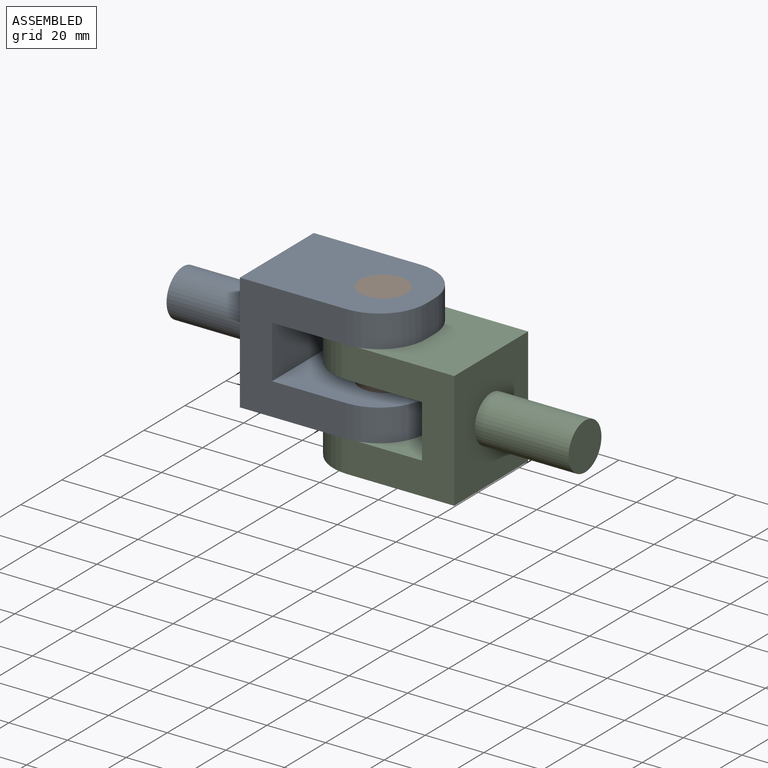
[diagram: assembled view]
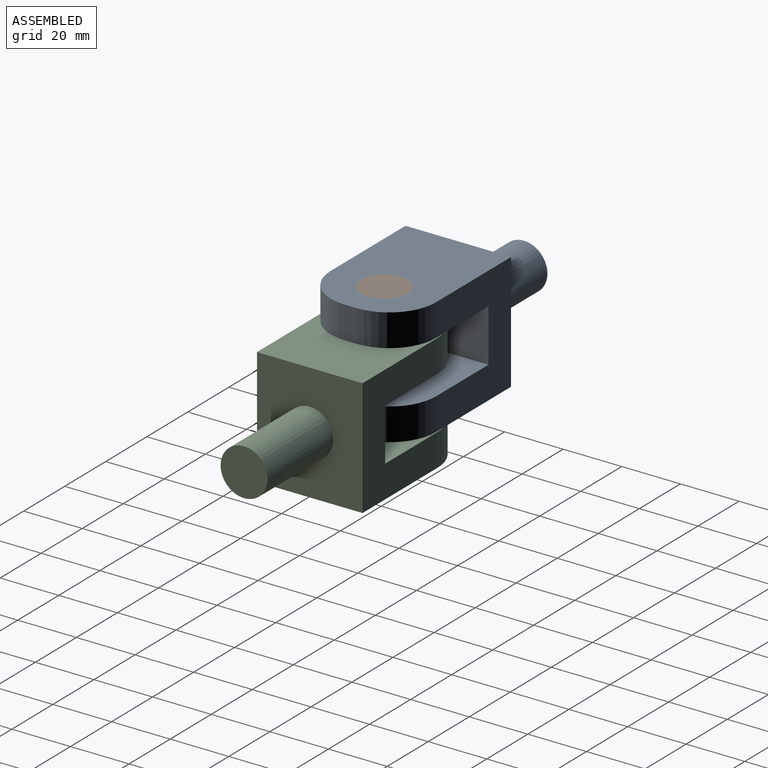
[diagram: assembled view, second angle]
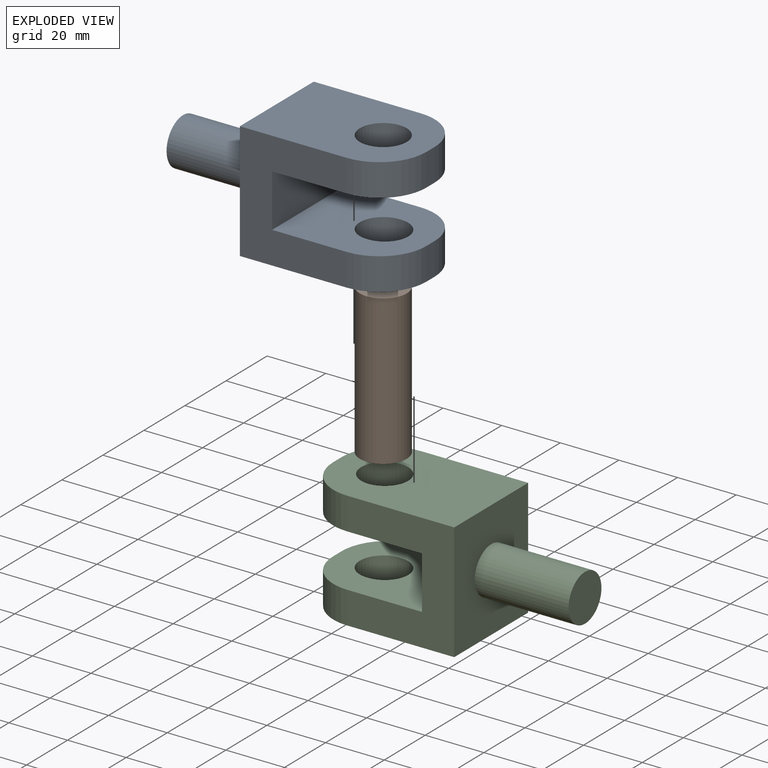
[diagram: exploded view]
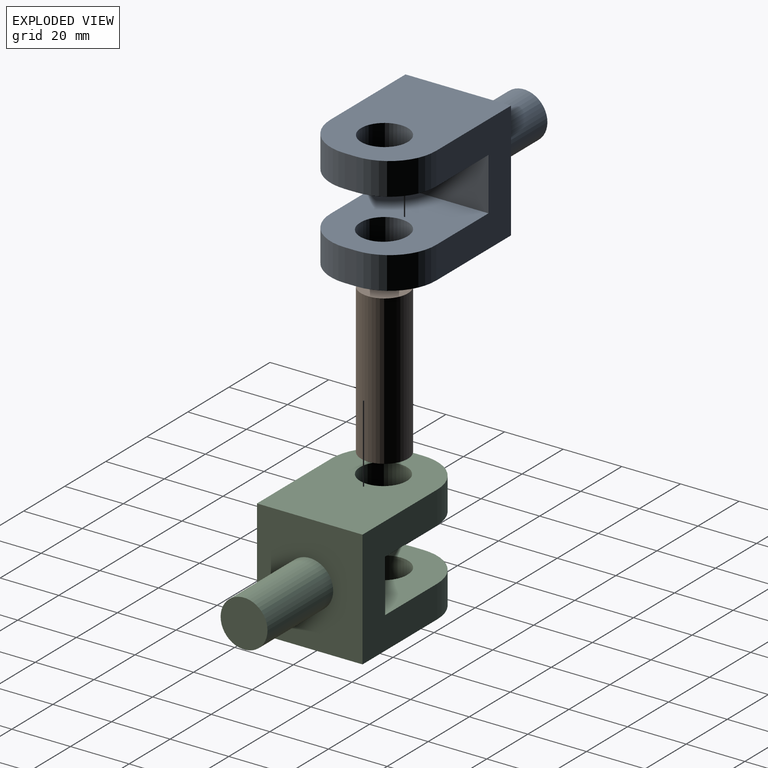
[diagram: exploded view, second angle]
ASSEMBLY  parts=3 mates=2
PART A: 19 faces, bbox 84.4x36x40 mm
  f0: plane 40x36mm, normal (1,0,0), area 1238.9mm2, adj f1,f7,f8,f9,f10
  f1: plane 52.44x36mm, normal (0,0,1), area 1576.9mm2, adj f0,f2,f8,f9,f14,f16,f18
  f2: plane 11x4mm, normal (-1,0,0), area 44mm2, adj f1,f3,f16,f18
  f3: plane 41.44x36mm, normal (0,0,-1), area 1180.9mm2, adj f2,f4,f8,f9,f14,f16,f18
  f4: plane 36x18mm, normal (-1,0,0), area 648mm2, adj f3,f5,f8,f9
  f5: plane 41.44x36mm, normal (0,0,1), area 1173mm2, adj f4,f6,f8,f9,f12,f13,f15,f17
  f6: plane 11x4mm, normal (-1,0,0), area 44mm2, adj f5,f7,f15,f17
  f7: plane 52.44x36mm, normal (0,0,-1), area 1569mm2, adj f0,f6,f8,f9,f12,f13,f15,f17
  f8: plane 40x36.44mm, normal (0,-1,0), area 999.7mm2, adj f0,f1,f3,f4,f5,f7,f17,f18
  f9: plane 40x36.44mm, normal (0,1,0), area 999.7mm2, adj f0,f1,f3,f4,f5,f7,f15,f16
  f10: cylinder r=8mm len=32mm, axis (-1,0,0), area 1608.5mm2, adj f0,f11
  f11: plane 16x16mm, normal (1,0,0), area 201.1mm2, adj f10
  f12: cylinder r=8mm len=16mm, axis (0,0,1), area 281.9mm2, adj f5,f7,f13
  f13: cylinder r=8mm len=16mm, axis (0,0,1), area 281.9mm2, adj f5,f7,f12
  f14: cylinder r=8mm len=16mm, axis (0,0,-1), area 552.9mm2, adj f1,f3
  f15: cylinder r=16mm len=16mm, axis (0,0,-1), area 276.5mm2, adj f5,f6,f7,f9
  f16: cylinder r=16mm len=16mm, axis (0,0,-1), area 276.5mm2, adj f1,f2,f3,f9
  f17: cylinder r=16mm len=16mm, axis (0,0,1), area 276.5mm2, adj f5,f6,f7,f8
  f18: cylinder r=16mm len=16mm, axis (0,0,1), area 276.5mm2, adj f1,f2,f3,f8
PART B: 3 faces, bbox 16x16x51 mm
  f0: cylinder r=8mm len=51mm, axis (0,0,-1), area 2563.5mm2, adj f1,f2
  f1: plane 16x16mm, normal (0,0,1), area 201.1mm2, adj f0
  f2: plane 16x16mm, normal (0,0,-1), area 201.1mm2, adj f0
PART C: same geometry as A
PLACE A rot(axis=(0,0,-1),180deg) t=(-37.19,-81.21,-7.21)mm
PLACE B t=(13.31,-94.74,-47.21)mm
PLACE C t=(-2.73,-44.85,-18.21)mm
MATE revolute C.f13 <-> B.f0  axis (0,0,-1) through (-20.21,-63.03,-47.21)mm
MATE revolute B.f0 <-> A.f12  axis (0,0,1) through (-20.21,-63.03,3.79)mm
